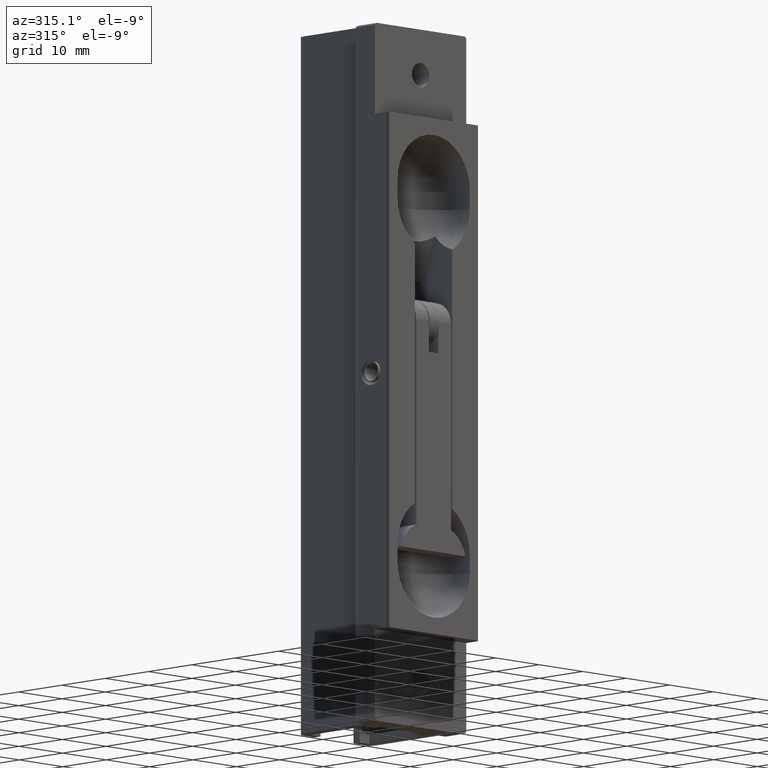
[diagram: clean part render]
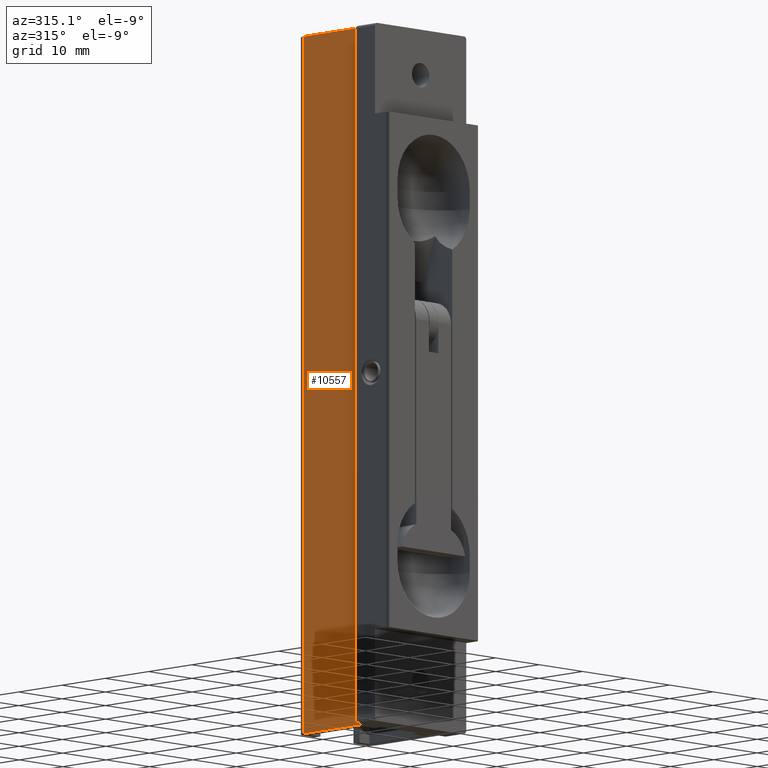
[diagram: same view with one face highlighted and labeled with its STEP entity id]
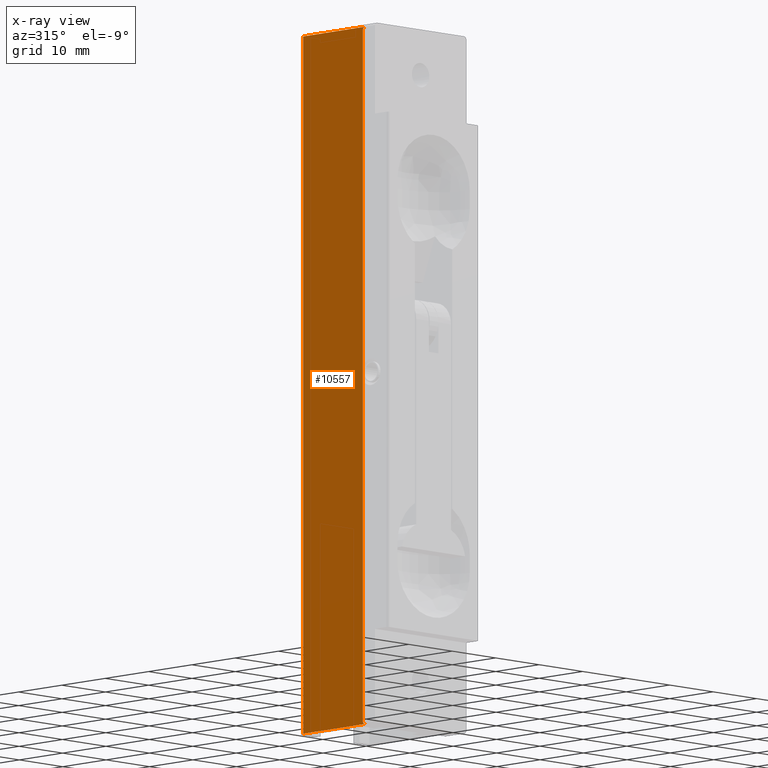
[diagram: x-ray of the same camera — body ghosted, the highlighted face saturated]
A machine part, auxiliary view. The second image highlights one B-rep face of the part: STEP entity #10557.
The next image is the same camera in x-ray: the body ghosted, the highlighted face saturated — about 0% of this face is hidden behind the body in this view.
In plain terms, the highlighted face is a freeform B-spline surface patch.
Its self-contained STEP definition (entity closure, byte-faithful):
#9003=CARTESIAN_POINT('',(-8.500000000000000,-8.200000000000001,57.500000000000000));
#9004=VERTEX_POINT('',#9003);
#9010=CARTESIAN_POINT('',(-8.500000000000000,-7.700000000000000,57.0));
#9011=VERTEX_POINT('',#9010);
#9012=CARTESIAN_POINT('',(-8.500000000000000,-7.700000000000000,57.0));
#9013=CARTESIAN_POINT('',(-8.500000000000002,-7.700000000000000,57.499999999999986));
#9014=CARTESIAN_POINT('',(-8.500000000000000,-8.200000000000001,57.500000000000000));
#9022=(BOUNDED_CURVE()B_SPLINE_CURVE(2,(#9012,#9013,#9014),.UNSPECIFIED.,.F.,.U.)CURVE()GEOMETRIC_REPRESENTATION_ITEM()QUASI_UNIFORM_CURVE()RATIONAL_B_SPLINE_CURVE((1.0,0.707106781186548,1.0))REPRESENTATION_ITEM(''));
#9023=EDGE_CURVE('',#9011,#9004,#9022,.T.);
#9489=CARTESIAN_POINT('',(-8.500000000000000,-7.700000000000000,-57.0));
#9490=VERTEX_POINT('',#9489);
#9496=CARTESIAN_POINT('',(-8.500000000000000,-8.200000000000001,-57.500000000000000));
#9497=VERTEX_POINT('',#9496);
#9498=CARTESIAN_POINT('',(-8.500000000000000,-8.200000000000001,-57.500000000000000));
#9499=CARTESIAN_POINT('',(-8.500000000000002,-7.700000000000000,-57.499999999999986));
#9500=CARTESIAN_POINT('',(-8.500000000000000,-7.700000000000000,-57.0));
#9508=(BOUNDED_CURVE()B_SPLINE_CURVE(2,(#9498,#9499,#9500),.UNSPECIFIED.,.F.,.U.)CURVE()GEOMETRIC_REPRESENTATION_ITEM()QUASI_UNIFORM_CURVE()RATIONAL_B_SPLINE_CURVE((1.0,0.707106781186548,1.0))REPRESENTATION_ITEM(''));
#9509=EDGE_CURVE('',#9497,#9490,#9508,.T.);
#9875=CARTESIAN_POINT('',(-8.500000000000000,5.999999999999830,-57.500000000000000));
#9876=VERTEX_POINT('',#9875);
#9892=CARTESIAN_POINT('',(-8.500000000000000,5.999999999999830,57.500000000000000));
#9893=VERTEX_POINT('',#9892);
#9894=CARTESIAN_POINT('',(-8.500000000000000,5.999999999999830,57.500000000000000));
#9895=CARTESIAN_POINT('',(-8.500000000000000,5.999999999999830,-57.500000000000000));
#9896=QUASI_UNIFORM_CURVE('',1,(#9894,#9895),.UNSPECIFIED.,.F.,.U.);
#9897=EDGE_CURVE('',#9893,#9876,#9896,.T.);
#10427=CARTESIAN_POINT('',(-8.500000000000000,-8.200000000000001,57.500000000000000));
#10428=CARTESIAN_POINT('',(-8.500000000000000,5.999999999999830,57.500000000000000));
#10429=QUASI_UNIFORM_CURVE('',1,(#10427,#10428),.UNSPECIFIED.,.F.,.U.);
#10430=EDGE_CURVE('',#9004,#9893,#10429,.T.);
#10536=CARTESIAN_POINT('',(-8.500000000000000,-8.909289839178198,-63.244249777107683));
#10537=CARTESIAN_POINT('',(-8.500000000000000,6.709290347009601,-63.244249777107683));
#10538=CARTESIAN_POINT('',(-8.500000000000000,-8.909289839178198,63.244252861648050));
#10539=CARTESIAN_POINT('',(-8.500000000000000,6.709290347009601,63.244252861648050));
#10540=B_SPLINE_SURFACE_WITH_KNOTS('',1,1,((#10536,#10538),(#10537,#10539)),.UNSPECIFIED.,.F.,.F.,.U.,(2,2),(2,2),(0.0,15.618580186187801),(0.0,126.488502638755800),.UNSPECIFIED.);
#10541=ORIENTED_EDGE('',*,*,#10430,.T.);
#10542=ORIENTED_EDGE('',*,*,#9897,.T.);
#10543=CARTESIAN_POINT('',(-8.500000000000000,-8.200000000000001,-57.500000000000000));
#10544=CARTESIAN_POINT('',(-8.500000000000000,5.999999999999830,-57.500000000000000));
#10545=QUASI_UNIFORM_CURVE('',1,(#10543,#10544),.UNSPECIFIED.,.F.,.U.);
#10546=EDGE_CURVE('',#9497,#9876,#10545,.T.);
#10547=ORIENTED_EDGE('',*,*,#10546,.F.);
#10548=ORIENTED_EDGE('',*,*,#9509,.T.);
#10549=CARTESIAN_POINT('',(-8.500000000000000,-7.700000000000000,-57.0));
#10550=CARTESIAN_POINT('',(-8.500000000000000,-7.700000000000000,57.0));
#10551=QUASI_UNIFORM_CURVE('',1,(#10549,#10550),.UNSPECIFIED.,.F.,.U.);
#10552=EDGE_CURVE('',#9490,#9011,#10551,.T.);
#10553=ORIENTED_EDGE('',*,*,#10552,.T.);
#10554=ORIENTED_EDGE('',*,*,#9023,.T.);
#10555=EDGE_LOOP('',(#10541,#10542,#10547,#10548,#10553,#10554));
#10556=FACE_OUTER_BOUND('',#10555,.T.);
#10557=ADVANCED_FACE('',(#10556),#10540,.F.);